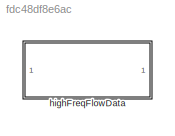
MODEL slx_fdc48df8e6ac
KIND library
CONFIG AbsTol = auto
CONFIG EnableMultiTasking = off
CONFIG FixedStep = auto
CONFIG MaxStep = auto
CONFIG MinStep = auto
CONFIG RelTol = 1e-3
CONFIG SampleTimeConstraint = Unconstrained
CONFIG SolverName = VariableStepAuto
CONFIG StartTime = 0.0
CONFIG StopTime = 10.0
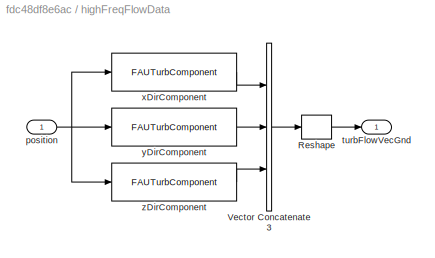
BLOCK [SubSystem] highFreqFlowData
  Ports = [1, 1]
  RequestExecContextInheritance = off
BLOCK [Reshape] highFreqFlowData/Reshape
  OutputDimensionality = Column vector (2-D)
  Ports = [1, 1]
BLOCK [Concatenate] highFreqFlowData/Vector Concatenate3
  NumInputs = 3
  Ports = [3, 1]
BLOCK [Inport] highFreqFlowData/position 
BLOCK [Outport] highFreqFlowData/turbFlowVecGnd
  VectorParamsAs1DForOutWhenUnconnected = off
BLOCK [Reference] highFreqFlowData/xDirComponent  REF=fauTurbComponent_ul/FAUTurbComponent
  Ports = [1, 1]
  SourceBlock = fauTurbComponent_ul/FAUTurbComponent
  SourceType = SubSystem
BLOCK [Reference] highFreqFlowData/yDirComponent  REF=fauTurbComponent_ul/FAUTurbComponent
  Ports = [1, 1]
  SourceBlock = fauTurbComponent_ul/FAUTurbComponent
  SourceType = SubSystem
BLOCK [Reference] highFreqFlowData/zDirComponent  REF=fauTurbComponent_ul/FAUTurbComponent
  Ports = [1, 1]
  SourceBlock = fauTurbComponent_ul/FAUTurbComponent
  SourceType = SubSystem
LINE highFreqFlowData/Reshape:1 -> highFreqFlowData/turbFlowVecGnd:1
LINE highFreqFlowData/Vector Concatenate3:1 -> highFreqFlowData/Reshape:1
NET highFreqFlowData/position :1 -> highFreqFlowData/xDirComponent:1, highFreqFlowData/yDirComponent:1, highFreqFlowData/zDirComponent:1
LINE highFreqFlowData/xDirComponent:1 -> highFreqFlowData/Vector Concatenate3:1
LINE highFreqFlowData/yDirComponent:1 -> highFreqFlowData/Vector Concatenate3:2
LINE highFreqFlowData/zDirComponent:1 -> highFreqFlowData/Vector Concatenate3:3
note: NET lines group one-source signal fan-out (src -> all destinations, sorted); 1:1 wires keep LINE
